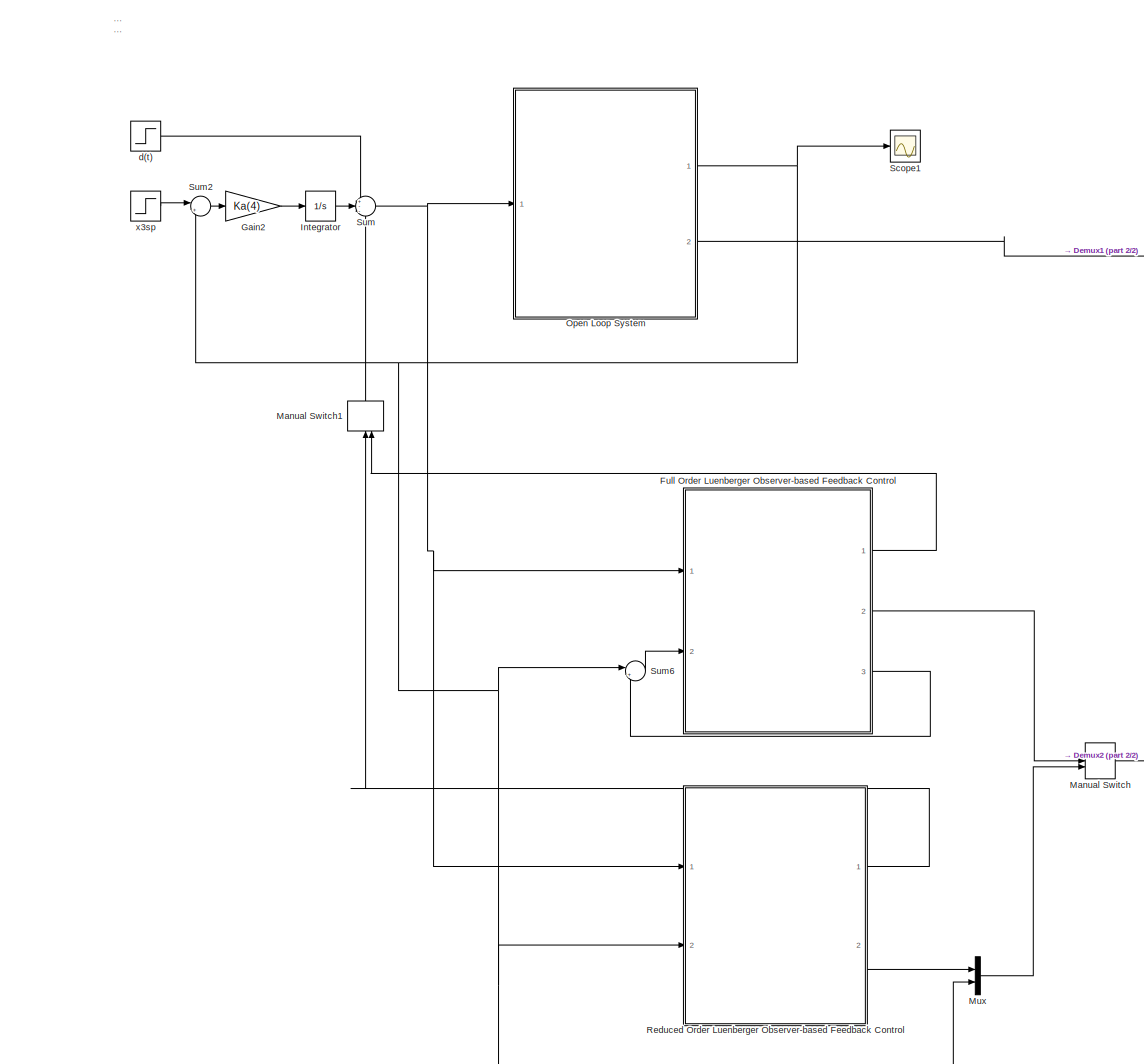
[diagram: root canvas - part 1/2, center side, full height]
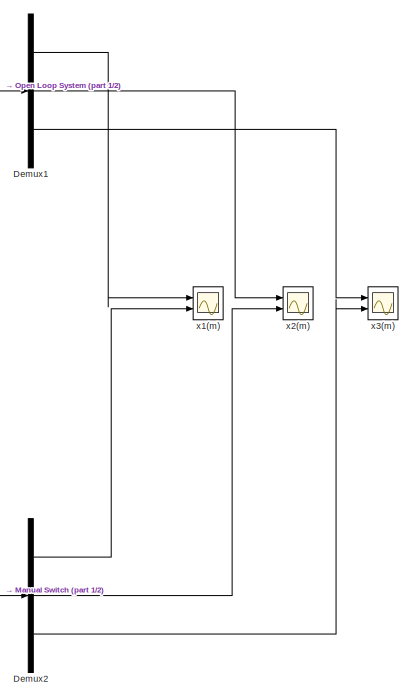
[diagram: root canvas - part 2/2, middle right region]
MODEL slx_436a4b1ed04d
KIND model
CONFIG AbsTol = auto
CONFIG EnableMultiTasking = off
CONFIG FixedStep = auto
CONFIG MaxStep = 1e-3
CONFIG MinStep = 1e-4
CONFIG RelTol = 1e-3
CONFIG SampleTimeConstraint = Unconstrained
CONFIG Solver = VariableStepAuto
CONFIG SolverName = VariableStepAuto
CONFIG StartTime = 0.0
CONFIG StopTime = 200
BLOCK [Demux] Demux1
  DisplayOption = bar
  Outputs = 3
  Ports = [1, 3]
BLOCK [Demux] Demux2
  DisplayOption = bar
  Outputs = 3
  Ports = [1, 3]
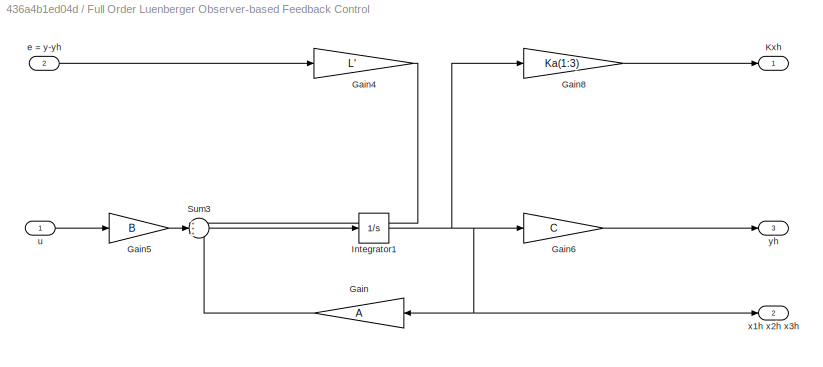
BLOCK [SubSystem] Full Order Luenberger Observer-based Feedback Control
  Ports = [2, 3]
  RequestExecContextInheritance = off
  Variant = off
BLOCK [Gain] Full Order Luenberger Observer-based Feedback Control/Gain
  Gain = A
  Multiplication = Matrix(K*u) (u vector)
  OutDataTypeStr = Inherit: Inherit via internal rule
  ParamDataTypeStr = Inherit: Inherit via internal rule
  SaturateOnIntegerOverflow = off
BLOCK [Gain] Full Order Luenberger Observer-based Feedback Control/Gain4
  Gain = L'
  Multiplication = Matrix(K*u) (u vector)
  OutDataTypeStr = Inherit: Inherit via internal rule
  ParamDataTypeStr = Inherit: Inherit via internal rule
  SaturateOnIntegerOverflow = off
BLOCK [Gain] Full Order Luenberger Observer-based Feedback Control/Gain5
  Gain = B
  Multiplication = Matrix(K*u) (u vector)
  OutDataTypeStr = Inherit: Inherit via internal rule
  ParamDataTypeStr = Inherit: Inherit via internal rule
  SaturateOnIntegerOverflow = off
BLOCK [Gain] Full Order Luenberger Observer-based Feedback Control/Gain6
  Gain = C
  Multiplication = Matrix(K*u) (u vector)
  OutDataTypeStr = Inherit: Inherit via internal rule
  ParamDataTypeStr = Inherit: Inherit via internal rule
  SaturateOnIntegerOverflow = off
BLOCK [Gain] Full Order Luenberger Observer-based Feedback Control/Gain8
  Gain = Ka(1:3)
  Multiplication = Matrix(K*u) (u vector)
  OutDataTypeStr = Inherit: Inherit via internal rule
  ParamDataTypeStr = Inherit: Inherit via internal rule
  SaturateOnIntegerOverflow = off
BLOCK [Integrator] Full Order Luenberger Observer-based Feedback Control/Integrator1
  InitialCondition = [1;1;2]
  Ports = [1, 1]
BLOCK [Outport] Full Order Luenberger Observer-based Feedback Control/Kxh
  IconDisplay = Port number
BLOCK [Sum] Full Order Luenberger Observer-based Feedback Control/Sum3
  IconShape = round
  InputSameDT = off
  Inputs = +++
  OutDataTypeStr = Inherit: Inherit via internal rule
  Ports = [3, 1]
  SaturateOnIntegerOverflow = off
BLOCK [Inport] Full Order Luenberger Observer-based Feedback Control/e = y-yh
  IconDisplay = Port number
  Port = 2
BLOCK [Inport] Full Order Luenberger Observer-based Feedback Control/u
  IconDisplay = Port number
BLOCK [Outport] Full Order Luenberger Observer-based Feedback Control/x1h x2h x3h
  IconDisplay = Port number
  Port = 2
BLOCK [Outport] Full Order Luenberger Observer-based Feedback Control/yh
  IconDisplay = Port number
  Port = 3
BLOCK [Gain] Gain2
  Gain = Ka(4)
  OutDataTypeStr = Inherit: Inherit via internal rule
  ParamDataTypeStr = Inherit: Inherit via internal rule
  SaturateOnIntegerOverflow = off
BLOCK [Integrator] Integrator
  Ports = [1, 1]
BLOCK [ManualSwitch] Manual Switch
BLOCK [ManualSwitch] Manual Switch1
  CurrentSetting = 0
BLOCK [Mux] Mux
  DisplayOption = bar
  Inputs = 2
  Ports = [2, 1]
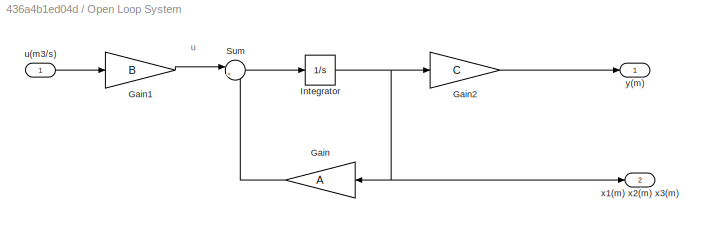
BLOCK [SubSystem] Open Loop System
  Ports = [1, 2]
  RequestExecContextInheritance = off
  Variant = off
BLOCK [Gain] Open Loop System/Gain
  Gain = A
  Multiplication = Matrix(K*u) (u vector)
  OutDataTypeStr = Inherit: Inherit via internal rule
  ParamDataTypeStr = Inherit: Inherit via internal rule
  SaturateOnIntegerOverflow = off
BLOCK [Gain] Open Loop System/Gain1
  Gain = B
  Multiplication = Matrix(K*u) (u vector)
  OutDataTypeStr = Inherit: Inherit via internal rule
  ParamDataTypeStr = Inherit: Inherit via internal rule
  SaturateOnIntegerOverflow = off
BLOCK [Gain] Open Loop System/Gain2
  Gain = C
  Multiplication = Matrix(K*u) (u vector)
  OutDataTypeStr = Inherit: Inherit via internal rule
  ParamDataTypeStr = Inherit: Inherit via internal rule
  SaturateOnIntegerOverflow = off
BLOCK [Integrator] Open Loop System/Integrator
  Ports = [1, 1]
BLOCK [Sum] Open Loop System/Sum
  IconShape = round
  InputSameDT = off
  Inputs = |++
  OutDataTypeStr = Inherit: Inherit via internal rule
  Ports = [2, 1]
  SaturateOnIntegerOverflow = off
BLOCK [Inport] Open Loop System/u(m3//s)
  IconDisplay = Port number
BLOCK [Outport] Open Loop System/x1(m) x2(m) x3(m)
  IconDisplay = Port number
  Port = 2
BLOCK [Outport] Open Loop System/y(m)
  IconDisplay = Port number
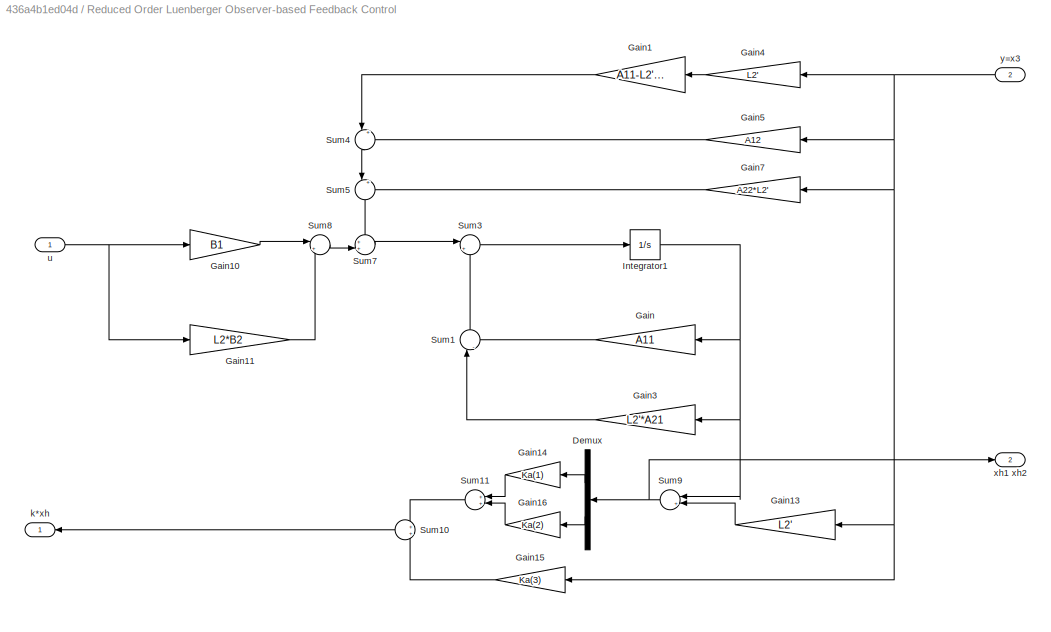
BLOCK [SubSystem] Reduced Order Luenberger Observer-based Feedback Control
  Ports = [2, 2]
  RequestExecContextInheritance = off
  Variant = off
BLOCK [Demux] Reduced Order Luenberger Observer-based Feedback Control/Demux
  DisplayOption = bar
  Outputs = 2
  Ports = [1, 2]
BLOCK [Gain] Reduced Order Luenberger Observer-based Feedback Control/Gain
  Gain = A11
  Multiplication = Matrix(K*u) (u vector)
  OutDataTypeStr = Inherit: Inherit via internal rule
  ParamDataTypeStr = Inherit: Inherit via internal rule
  SaturateOnIntegerOverflow = off
BLOCK [Gain] Reduced Order Luenberger Observer-based Feedback Control/Gain1
  Gain = A11-L2'*A21
  Multiplication = Matrix(K*u) (u vector)
  OutDataTypeStr = Inherit: Inherit via internal rule
  ParamDataTypeStr = Inherit: Inherit via internal rule
  SaturateOnIntegerOverflow = off
BLOCK [Gain] Reduced Order Luenberger Observer-based Feedback Control/Gain10
  Gain = B1
  Multiplication = Matrix(K*u) (u vector)
  OutDataTypeStr = Inherit: Inherit via internal rule
  ParamDataTypeStr = Inherit: Inherit via internal rule
  SaturateOnIntegerOverflow = off
BLOCK [Gain] Reduced Order Luenberger Observer-based Feedback Control/Gain11
  Gain = L2*B2
  Multiplication = Matrix(K*u) (u vector)
  OutDataTypeStr = Inherit: Inherit via internal rule
  ParamDataTypeStr = Inherit: Inherit via internal rule
  SaturateOnIntegerOverflow = off
BLOCK [Gain] Reduced Order Luenberger Observer-based Feedback Control/Gain13
  Gain = L2'
  Multiplication = Matrix(K*u) (u vector)
  OutDataTypeStr = Inherit: Inherit via internal rule
  ParamDataTypeStr = Inherit: Inherit via internal rule
  SaturateOnIntegerOverflow = off
BLOCK [Gain] Reduced Order Luenberger Observer-based Feedback Control/Gain14
  Gain = Ka(1)
  OutDataTypeStr = Inherit: Inherit via internal rule
  ParamDataTypeStr = Inherit: Inherit via internal rule
  SaturateOnIntegerOverflow = off
BLOCK [Gain] Reduced Order Luenberger Observer-based Feedback Control/Gain15
  Gain = Ka(3)
  OutDataTypeStr = Inherit: Inherit via internal rule
  ParamDataTypeStr = Inherit: Inherit via internal rule
  SaturateOnIntegerOverflow = off
BLOCK [Gain] Reduced Order Luenberger Observer-based Feedback Control/Gain16
  Gain = Ka(2)
  OutDataTypeStr = Inherit: Inherit via internal rule
  ParamDataTypeStr = Inherit: Inherit via internal rule
  SaturateOnIntegerOverflow = off
BLOCK [Gain] Reduced Order Luenberger Observer-based Feedback Control/Gain3
  Gain = L2'*A21
  Multiplication = Matrix(K*u) (u vector)
  OutDataTypeStr = Inherit: Inherit via internal rule
  ParamDataTypeStr = Inherit: Inherit via internal rule
  SaturateOnIntegerOverflow = off
BLOCK [Gain] Reduced Order Luenberger Observer-based Feedback Control/Gain4
  Gain = L2'
  Multiplication = Matrix(K*u) (u vector)
  OutDataTypeStr = Inherit: Inherit via internal rule
  ParamDataTypeStr = Inherit: Inherit via internal rule
  SaturateOnIntegerOverflow = off
BLOCK [Gain] Reduced Order Luenberger Observer-based Feedback Control/Gain5
  Gain = A12
  Multiplication = Matrix(K*u) (u vector)
  OutDataTypeStr = Inherit: Inherit via internal rule
  ParamDataTypeStr = Inherit: Inherit via internal rule
  SaturateOnIntegerOverflow = off
BLOCK [Gain] Reduced Order Luenberger Observer-based Feedback Control/Gain7
  Gain = A22*L2'
  Multiplication = Matrix(K*u) (u vector)
  OutDataTypeStr = Inherit: Inherit via internal rule
  ParamDataTypeStr = Inherit: Inherit via internal rule
  SaturateOnIntegerOverflow = off
BLOCK [Integrator] Reduced Order Luenberger Observer-based Feedback Control/Integrator1
  InitialCondition = [1;0.5]
  Ports = [1, 1]
BLOCK [Sum] Reduced Order Luenberger Observer-based Feedback Control/Sum1
  IconShape = round
  InputSameDT = off
  Inputs = |-+
  OutDataTypeStr = Inherit: Inherit via internal rule
  Ports = [2, 1]
  SaturateOnIntegerOverflow = off
BLOCK [Sum] Reduced Order Luenberger Observer-based Feedback Control/Sum10
  IconShape = round
  InputSameDT = off
  OutDataTypeStr = Inherit: Inherit via internal rule
  Ports = [2, 1]
  SaturateOnIntegerOverflow = off
BLOCK [Sum] Reduced Order Luenberger Observer-based Feedback Control/Sum11
  IconShape = round
  InputSameDT = off
  OutDataTypeStr = Inherit: Inherit via internal rule
  Ports = [2, 1]
  SaturateOnIntegerOverflow = off
BLOCK [Sum] Reduced Order Luenberger Observer-based Feedback Control/Sum3
  IconShape = round
  InputSameDT = off
  Inputs = |++
  OutDataTypeStr = Inherit: Inherit via internal rule
  Ports = [2, 1]
  SaturateOnIntegerOverflow = off
BLOCK [Sum] Reduced Order Luenberger Observer-based Feedback Control/Sum4
  IconShape = round
  InputSameDT = off
  Inputs = |++
  OutDataTypeStr = Inherit: Inherit via internal rule
  Ports = [2, 1]
  SaturateOnIntegerOverflow = off
BLOCK [Sum] Reduced Order Luenberger Observer-based Feedback Control/Sum5
  IconShape = round
  InputSameDT = off
  Inputs = |+-
  OutDataTypeStr = Inherit: Inherit via internal rule
  Ports = [2, 1]
  SaturateOnIntegerOverflow = off
BLOCK [Sum] Reduced Order Luenberger Observer-based Feedback Control/Sum7
  IconShape = round
  InputSameDT = off
  Inputs = ++|
  OutDataTypeStr = Inherit: Inherit via internal rule
  Ports = [2, 1]
  SaturateOnIntegerOverflow = off
BLOCK [Sum] Reduced Order Luenberger Observer-based Feedback Control/Sum8
  IconShape = round
  InputSameDT = off
  Inputs = |+-
  OutDataTypeStr = Inherit: Inherit via internal rule
  Ports = [2, 1]
  SaturateOnIntegerOverflow = off
BLOCK [Sum] Reduced Order Luenberger Observer-based Feedback Control/Sum9
  IconShape = round
  InputSameDT = off
  Inputs = |++
  OutDataTypeStr = Inherit: Inherit via internal rule
  Ports = [2, 1]
  SaturateOnIntegerOverflow = off
BLOCK [Outport] Reduced Order Luenberger Observer-based Feedback Control/k*xh
  IconDisplay = Port number
BLOCK [Inport] Reduced Order Luenberger Observer-based Feedback Control/u
  IconDisplay = Port number
BLOCK [Outport] Reduced Order Luenberger Observer-based Feedback Control/xh1 xh2
  IconDisplay = Port number
  Port = 2
BLOCK [Inport] Reduced Order Luenberger Observer-based Feedback Control/y=x3
  IconDisplay = Port number
  Port = 2
BLOCK [Scope] Scope1
  NumInputPorts = 1
  Ports = [1]
  ScopeSpecificationString = Simulink.scopes.TimeScopeBlockCfg('CurrentConfiguration', extmgr.ConfigurationSet(extmgr.Configuration('Core','General UI',true),extmgr.Configuration('Core','Source UI',true),extmgr.Configuration('Sources','WiredSimulink',true),extmgr.Configuration('Visuals','Time Domain',true,'SerializedDisplays',{struct('MinYLimReal','-0.03631','MaxYLimReal','0.32681','YLabelReal','','MinYLimMag','0.00000','MaxY...<+1409ch>
BLOCK [Sum] Sum
  IconShape = round
  InputSameDT = off
  Inputs = +--
  OutDataTypeStr = Inherit: Inherit via internal rule
  Ports = [3, 1]
  SaturateOnIntegerOverflow = off
BLOCK [Sum] Sum2
  IconShape = round
  InputSameDT = off
  Inputs = |+-
  OutDataTypeStr = Inherit: Inherit via internal rule
  Ports = [2, 1]
  SaturateOnIntegerOverflow = off
BLOCK [Sum] Sum6
  IconShape = round
  InputSameDT = off
  Inputs = |+-
  OutDataTypeStr = Inherit: Inherit via internal rule
  Ports = [2, 1]
  SaturateOnIntegerOverflow = off
BLOCK [Step] d(t)
  After = 0
  SampleTime = 0
  Time = 75
BLOCK [Scope] x1(m)
  NumInputPorts = 2
  Ports = [2]
  ScopeSpecificationString = Simulink.scopes.TimeScopeBlockCfg('CurrentConfiguration', extmgr.ConfigurationSet(extmgr.Configuration('Core','General UI',true),extmgr.Configuration('Core','Source UI',true),extmgr.Configuration('Sources','WiredSimulink',true,'DataLoggingVariableName','ScopeData1'),extmgr.Configuration('Visuals','Time Domain',true,'SerializedDisplays',{struct('MinYLimReal','-1.45011','MaxYLimReal','1.27223','YLab...<+1403ch>
BLOCK [Scope] x2(m)
  NumInputPorts = 2
  Ports = [2]
  ScopeSpecificationString = Simulink.scopes.TimeScopeBlockCfg('CurrentConfiguration', extmgr.ConfigurationSet(extmgr.Configuration('Core','General UI',true),extmgr.Configuration('Core','Source UI',true),extmgr.Configuration('Sources','WiredSimulink',true,'DataLoggingVariableName','ScopeData2'),extmgr.Configuration('Visuals','Time Domain',true,'SerializedDisplays',{struct('MinYLimReal','-1.06734','MaxYLimReal','1.2297','YLabe...<+1374ch>
BLOCK [Scope] x3(m)
  NumInputPorts = 2
  Ports = [2]
  ScopeSpecificationString = Simulink.scopes.TimeScopeBlockCfg('CurrentConfiguration', extmgr.ConfigurationSet(extmgr.Configuration('Core','General UI',true),extmgr.Configuration('Core','Source UI',true),extmgr.Configuration('Sources','WiredSimulink',true,'DataLoggingVariableName','ScopeData3'),extmgr.Configuration('Visuals','Time Domain',true,'SerializedDisplays',{struct('MinYLimReal','-0.39678','MaxYLimReal','2.26631','YLab...<+1403ch>
BLOCK [Step] x3sp
  After = 0.25
  SampleTime = 0
  Time = 0
ANNOTATION (root): Linearized system with state feedback and integral control with non-zero constant disturbance
ANNOTATION Open Loop System: u
LINE Demux1:1 -> x1(m):1
LINE Demux1:2 -> x2(m):1
LINE Demux1:3 -> x3(m):1
LINE Demux2:1 -> x1(m):2
LINE Demux2:2 -> x2(m):2
LINE Demux2:3 -> x3(m):2
LINE Full Order Luenberger Observer-based Feedback Control/Gain4:1 -> Full Order Luenberger Observer-based Feedback Control/Sum3:1
LINE Full Order Luenberger Observer-based Feedback Control/Gain5:1 -> Full Order Luenberger Observer-based Feedback Control/Sum3:2
LINE Full Order Luenberger Observer-based Feedback Control/Gain6:1 -> Full Order Luenberger Observer-based Feedback Control/yh:1
LINE Full Order Luenberger Observer-based Feedback Control/Gain8:1 -> Full Order Luenberger Observer-based Feedback Control/Kxh:1
LINE Full Order Luenberger Observer-based Feedback Control/Gain:1 -> Full Order Luenberger Observer-based Feedback Control/Sum3:3
NET Full Order Luenberger Observer-based Feedback Control/Integrator1:1 -> Full Order Luenberger Observer-based Feedback Control/Gain6:1, Full Order Luenberger Observer-based Feedback Control/Gain8:1, Full Order Luenberger Observer-based Feedback Control/Gain:1, Full Order Luenberger Observer-based Feedback Control/x1h x2h x3h:1
LINE Full Order Luenberger Observer-based Feedback Control/Sum3:1 -> Full Order Luenberger Observer-based Feedback Control/Integrator1:1
LINE Full Order Luenberger Observer-based Feedback Control/e = y-yh:1 -> Full Order Luenberger Observer-based Feedback Control/Gain4:1
LINE Full Order Luenberger Observer-based Feedback Control/u:1 -> Full Order Luenberger Observer-based Feedback Control/Gain5:1
LINE Full Order Luenberger Observer-based Feedback Control:1 -> Manual Switch1:2
LINE Full Order Luenberger Observer-based Feedback Control:2 -> Manual Switch:1
LINE Full Order Luenberger Observer-based Feedback Control:3 -> Sum6:2
LINE Gain2:1 -> Integrator:1
LINE Integrator:1 -> Sum:2
LINE Manual Switch1:1 -> Sum:3
LINE Manual Switch:1 -> Demux2:1
LINE Mux:1 -> Manual Switch:2
LINE Open Loop System/Gain1:1 -> Open Loop System/Sum:1
LINE Open Loop System/Gain2:1 -> Open Loop System/y(m):1
LINE Open Loop System/Gain:1 -> Open Loop System/Sum:2
NET Open Loop System/Integrator:1 -> Open Loop System/Gain2:1, Open Loop System/Gain:1, Open Loop System/x1(m) x2(m) x3(m):1
LINE Open Loop System/Sum:1 -> Open Loop System/Integrator:1
LINE Open Loop System/u(m3//s):1 -> Open Loop System/Gain1:1
NET Open Loop System:1 -> Mux:2, Reduced Order Luenberger Observer-based Feedback Control:2, Scope1:1, Sum2:2, Sum6:1
LINE Open Loop System:2 -> Demux1:1
LINE Reduced Order Luenberger Observer-based Feedback Control/Demux:1 -> Reduced Order Luenberger Observer-based Feedback Control/Gain14:1
LINE Reduced Order Luenberger Observer-based Feedback Control/Demux:2 -> Reduced Order Luenberger Observer-based Feedback Control/Gain16:1
LINE Reduced Order Luenberger Observer-based Feedback Control/Gain10:1 -> Reduced Order Luenberger Observer-based Feedback Control/Sum8:1
LINE Reduced Order Luenberger Observer-based Feedback Control/Gain11:1 -> Reduced Order Luenberger Observer-based Feedback Control/Sum8:2
LINE Reduced Order Luenberger Observer-based Feedback Control/Gain13:1 -> Reduced Order Luenberger Observer-based Feedback Control/Sum9:2
LINE Reduced Order Luenberger Observer-based Feedback Control/Gain14:1 -> Reduced Order Luenberger Observer-based Feedback Control/Sum11:1
LINE Reduced Order Luenberger Observer-based Feedback Control/Gain15:1 -> Reduced Order Luenberger Observer-based Feedback Control/Sum10:2
LINE Reduced Order Luenberger Observer-based Feedback Control/Gain16:1 -> Reduced Order Luenberger Observer-based Feedback Control/Sum11:2
LINE Reduced Order Luenberger Observer-based Feedback Control/Gain1:1 -> Reduced Order Luenberger Observer-based Feedback Control/Sum4:1
LINE Reduced Order Luenberger Observer-based Feedback Control/Gain3:1 -> Reduced Order Luenberger Observer-based Feedback Control/Sum1:1
LINE Reduced Order Luenberger Observer-based Feedback Control/Gain4:1 -> Reduced Order Luenberger Observer-based Feedback Control/Gain1:1
LINE Reduced Order Luenberger Observer-based Feedback Control/Gain5:1 -> Reduced Order Luenberger Observer-based Feedback Control/Sum4:2
LINE Reduced Order Luenberger Observer-based Feedback Control/Gain7:1 -> Reduced Order Luenberger Observer-based Feedback Control/Sum5:2
LINE Reduced Order Luenberger Observer-based Feedback Control/Gain:1 -> Reduced Order Luenberger Observer-based Feedback Control/Sum1:2
NET Reduced Order Luenberger Observer-based Feedback Control/Integrator1:1 -> Reduced Order Luenberger Observer-based Feedback Control/Gain3:1, Reduced Order Luenberger Observer-based Feedback Control/Gain:1, Reduced Order Luenberger Observer-based Feedback Control/Sum9:1
LINE Reduced Order Luenberger Observer-based Feedback Control/Sum10:1 -> Reduced Order Luenberger Observer-based Feedback Control/k*xh:1
LINE Reduced Order Luenberger Observer-based Feedback Control/Sum11:1 -> Reduced Order Luenberger Observer-based Feedback Control/Sum10:1
LINE Reduced Order Luenberger Observer-based Feedback Control/Sum1:1 -> Reduced Order Luenberger Observer-based Feedback Control/Sum3:2
LINE Reduced Order Luenberger Observer-based Feedback Control/Sum3:1 -> Reduced Order Luenberger Observer-based Feedback Control/Integrator1:1
LINE Reduced Order Luenberger Observer-based Feedback Control/Sum4:1 -> Reduced Order Luenberger Observer-based Feedback Control/Sum5:1
LINE Reduced Order Luenberger Observer-based Feedback Control/Sum5:1 -> Reduced Order Luenberger Observer-based Feedback Control/Sum7:1
LINE Reduced Order Luenberger Observer-based Feedback Control/Sum7:1 -> Reduced Order Luenberger Observer-based Feedback Control/Sum3:1
LINE Reduced Order Luenberger Observer-based Feedback Control/Sum8:1 -> Reduced Order Luenberger Observer-based Feedback Control/Sum7:2
NET Reduced Order Luenberger Observer-based Feedback Control/Sum9:1 -> Reduced Order Luenberger Observer-based Feedback Control/Demux:1, Reduced Order Luenberger Observer-based Feedback Control/xh1 xh2:1
NET Reduced Order Luenberger Observer-based Feedback Control/u:1 -> Reduced Order Luenberger Observer-based Feedback Control/Gain10:1, Reduced Order Luenberger Observer-based Feedback Control/Gain11:1
NET Reduced Order Luenberger Observer-based Feedback Control/y=x3:1 -> Reduced Order Luenberger Observer-based Feedback Control/Gain13:1, Reduced Order Luenberger Observer-based Feedback Control/Gain15:1, Reduced Order Luenberger Observer-based Feedback Control/Gain4:1, Reduced Order Luenberger Observer-based Feedback Control/Gain5:1, Reduced Order Luenberger Observer-based Feedback Control/Gain7:1
LINE Reduced Order Luenberger Observer-based Feedback Control:1 -> Manual Switch1:1
LINE Reduced Order Luenberger Observer-based Feedback Control:2 -> Mux:1
LINE Sum2:1 -> Gain2:1
LINE Sum6:1 -> Full Order Luenberger Observer-based Feedback Control:2
NET Sum:1 -> Full Order Luenberger Observer-based Feedback Control:1, Open Loop System:1, Reduced Order Luenberger Observer-based Feedback Control:1
LINE d(t):1 -> Sum:1
LINE x3sp:1 -> Sum2:1
note: NET lines group one-source signal fan-out (src -> all destinations, sorted); 1:1 wires keep LINE
